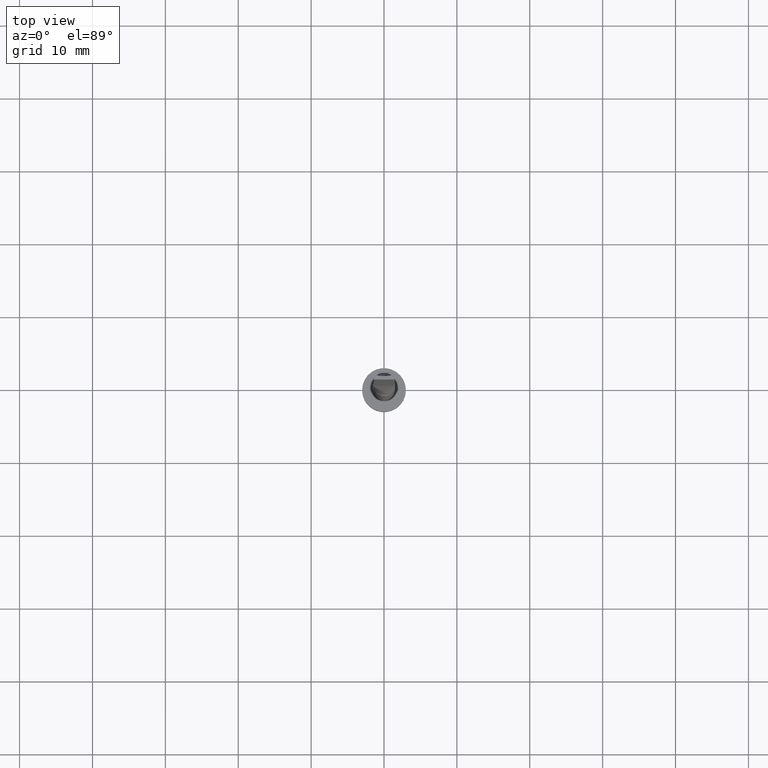
[diagram: clean part render]
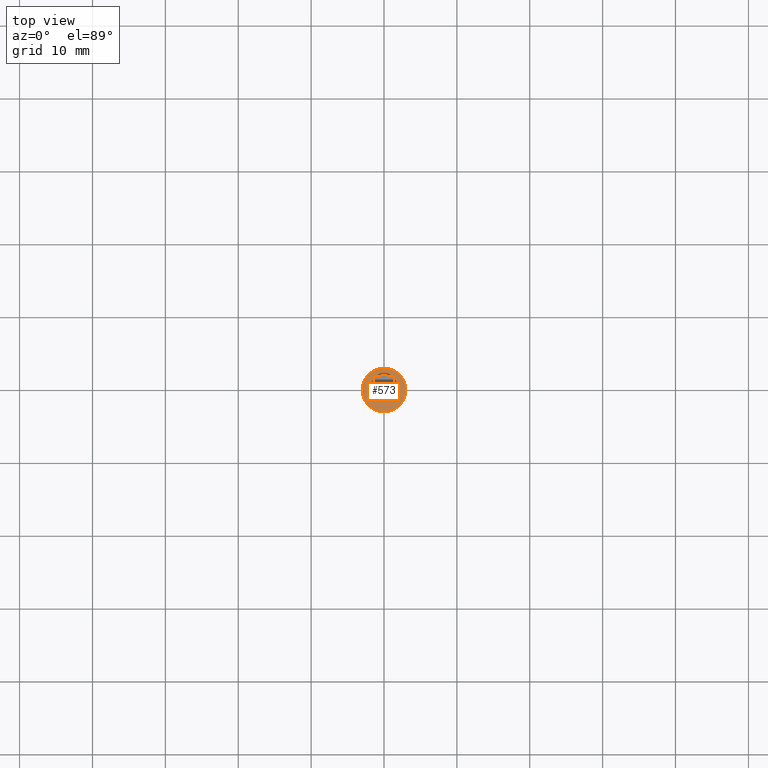
[diagram: same view with one face highlighted and labeled with its STEP entity id]
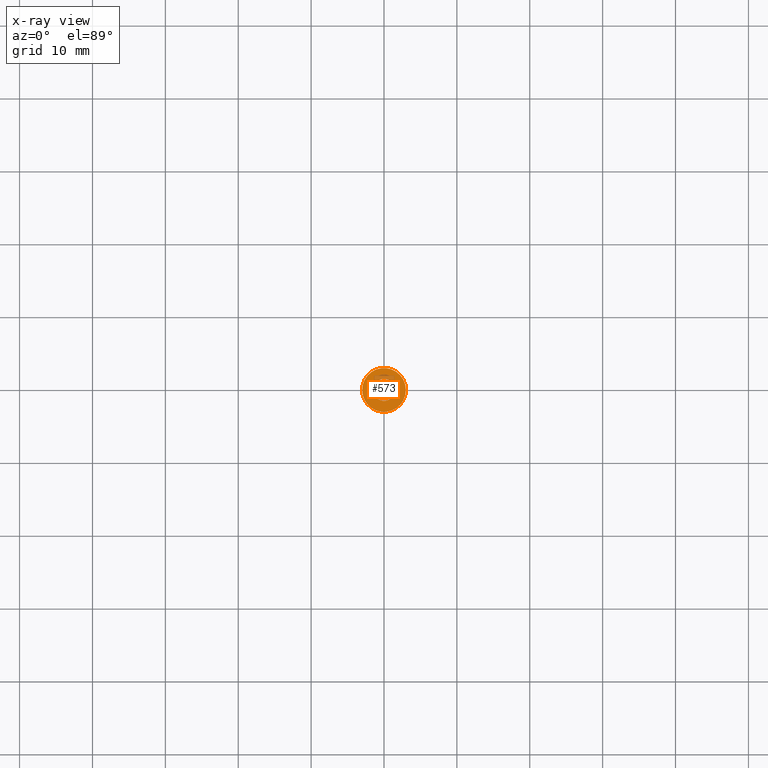
[diagram: x-ray of the same camera — body ghosted, the highlighted face saturated]
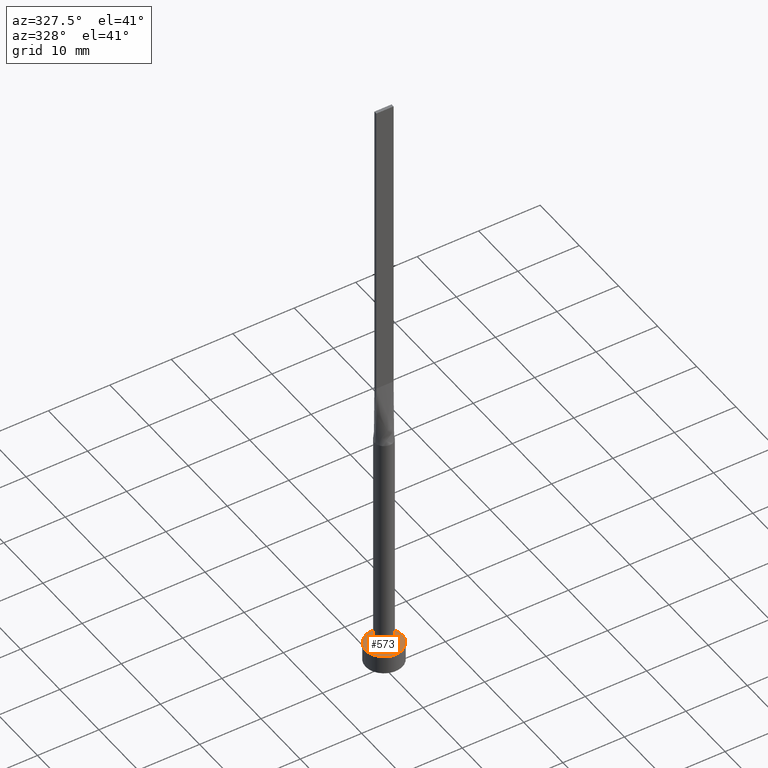
[diagram: same view with one face highlighted and labeled with its STEP entity id]
A machine part, top view. The second image highlights one B-rep face of the part: STEP entity #573.
The next image is the same camera in x-ray: the body ghosted, the highlighted face saturated — about 11% of this face is hidden behind the body in this view.
A second angle (auxiliary view) of the same face is appended — the face is thin or edge-on in the first view.
In plain terms, the highlighted planar face has unit normal (0, 0, 1).
Its self-contained STEP definition (entity closure, byte-faithful):
#29 = DIRECTION ( 'NONE',  ( 0.000000000000000000, 0.000000000000000000, 1.000000000000000000 ) ) ;
#37 = CIRCLE ( 'NONE', #127, 3.000000000000000444 ) ;
#43 = EDGE_CURVE ( 'NONE', #401, #326, #562, .T. ) ;
#44 = CIRCLE ( 'NONE', #370, 3.000000000000000444 ) ;
#62 = FACE_BOUND ( 'NONE', #202, .T. ) ;
#88 = ORIENTED_EDGE ( 'NONE', *, *, #409, .T. ) ;
#102 = EDGE_CURVE ( 'NONE', #326, #401, #388, .T. ) ;
#113 = DIRECTION ( 'NONE',  ( 0.000000000000000000, 0.000000000000000000, 1.000000000000000000 ) ) ;
#118 = PLANE ( 'NONE',  #146 ) ;
#124 = ORIENTED_EDGE ( 'NONE', *, *, #102, .F. ) ;
#127 = AXIS2_PLACEMENT_3D ( 'NONE', #521, #29, #173 ) ;
#136 = VERTEX_POINT ( 'NONE', #140 ) ;
#140 = CARTESIAN_POINT ( 'NONE',  ( 3.000000000000000444, 3.673940397442060361E-16, 3.000000000000000000 ) ) ;
#146 = AXIS2_PLACEMENT_3D ( 'NONE', #166, #113, #207 ) ;
#165 = CARTESIAN_POINT ( 'NONE',  ( 0.000000000000000000, 0.000000000000000000, 3.000000000000000000 ) ) ;
#166 = CARTESIAN_POINT ( 'NONE',  ( 0.000000000000000000, 0.000000000000000000, 3.000000000000000000 ) ) ;
#173 = DIRECTION ( 'NONE',  ( 1.000000000000000000, 0.000000000000000000, 0.000000000000000000 ) ) ;
#200 = AXIS2_PLACEMENT_3D ( 'NONE', #315, #263, #358 ) ;
#202 = EDGE_LOOP ( 'NONE', ( #536, #124 ) ) ;
#207 = DIRECTION ( 'NONE',  ( 1.000000000000000000, 0.000000000000000000, -0.000000000000000000 ) ) ;
#239 = CARTESIAN_POINT ( 'NONE',  ( 0.000000000000000000, 0.000000000000000000, 3.000000000000000000 ) ) ;
#263 = DIRECTION ( 'NONE',  ( 0.000000000000000000, 0.000000000000000000, 1.000000000000000000 ) ) ;
#279 = EDGE_CURVE ( 'NONE', #136, #572, #44, .T. ) ;
#287 = CARTESIAN_POINT ( 'NONE',  ( -3.000000000000000444, 0.000000000000000000, 3.000000000000000000 ) ) ;
#315 = CARTESIAN_POINT ( 'NONE',  ( 0.000000000000000000, 0.000000000000000000, 3.000000000000000000 ) ) ;
#316 = AXIS2_PLACEMENT_3D ( 'NONE', #165, #437, #340 ) ;
#326 = VERTEX_POINT ( 'NONE', #555 ) ;
#340 = DIRECTION ( 'NONE',  ( 1.000000000000000000, 0.000000000000000000, 0.000000000000000000 ) ) ;
#358 = DIRECTION ( 'NONE',  ( 1.000000000000000000, 0.000000000000000000, 0.000000000000000000 ) ) ;
#370 = AXIS2_PLACEMENT_3D ( 'NONE', #239, #500, #502 ) ;
#388 = CIRCLE ( 'NONE', #200, 1.500000000000000222 ) ;
#401 = VERTEX_POINT ( 'NONE', #439 ) ;
#409 = EDGE_CURVE ( 'NONE', #572, #136, #37, .T. ) ;
#413 = ORIENTED_EDGE ( 'NONE', *, *, #279, .T. ) ;
#437 = DIRECTION ( 'NONE',  ( 0.000000000000000000, 0.000000000000000000, 1.000000000000000000 ) ) ;
#439 = CARTESIAN_POINT ( 'NONE',  ( -1.500000000000000222, 0.000000000000000000, 3.000000000000000000 ) ) ;
#500 = DIRECTION ( 'NONE',  ( 0.000000000000000000, 0.000000000000000000, 1.000000000000000000 ) ) ;
#502 = DIRECTION ( 'NONE',  ( 1.000000000000000000, 0.000000000000000000, 0.000000000000000000 ) ) ;
#516 = FACE_OUTER_BOUND ( 'NONE', #532, .T. ) ;
#521 = CARTESIAN_POINT ( 'NONE',  ( 0.000000000000000000, 0.000000000000000000, 3.000000000000000000 ) ) ;
#532 = EDGE_LOOP ( 'NONE', ( #88, #413 ) ) ;
#536 = ORIENTED_EDGE ( 'NONE', *, *, #43, .F. ) ;
#555 = CARTESIAN_POINT ( 'NONE',  ( 1.500000000000000222, 1.836970198721030181E-16, 3.000000000000000000 ) ) ;
#562 = CIRCLE ( 'NONE', #316, 1.500000000000000222 ) ;
#572 = VERTEX_POINT ( 'NONE', #287 ) ;
#573 = ADVANCED_FACE ( 'NONE', ( #62, #516 ), #118, .T. ) ;